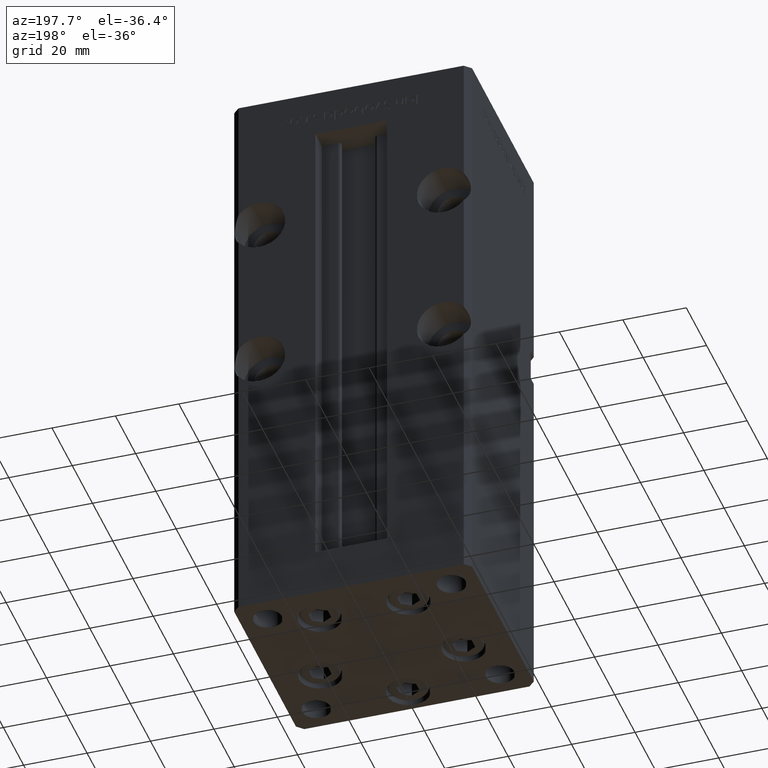
[diagram: clean part render]
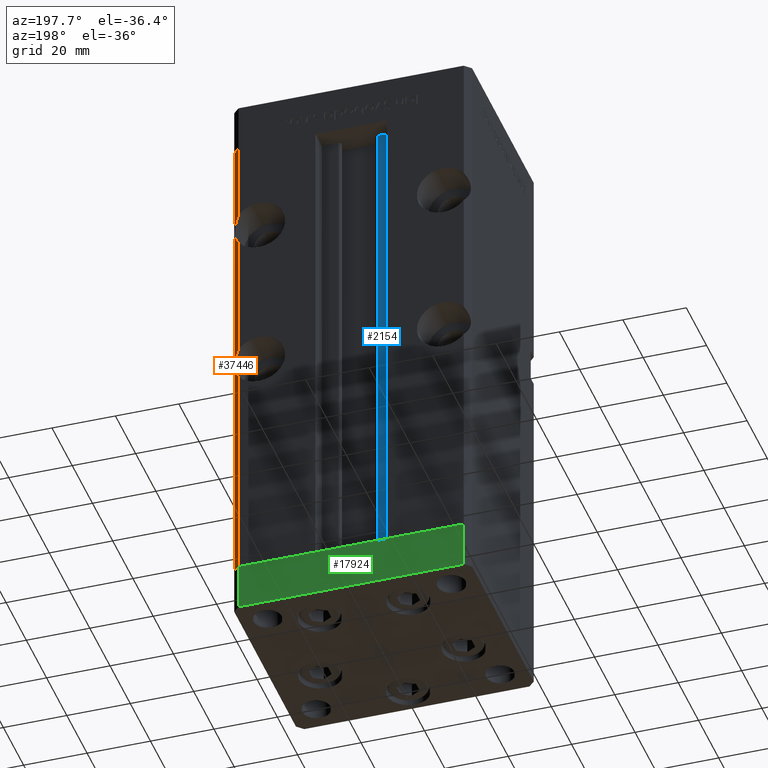
[diagram: same view with three faces highlighted in distinct colors, each labeled with its STEP entity id]
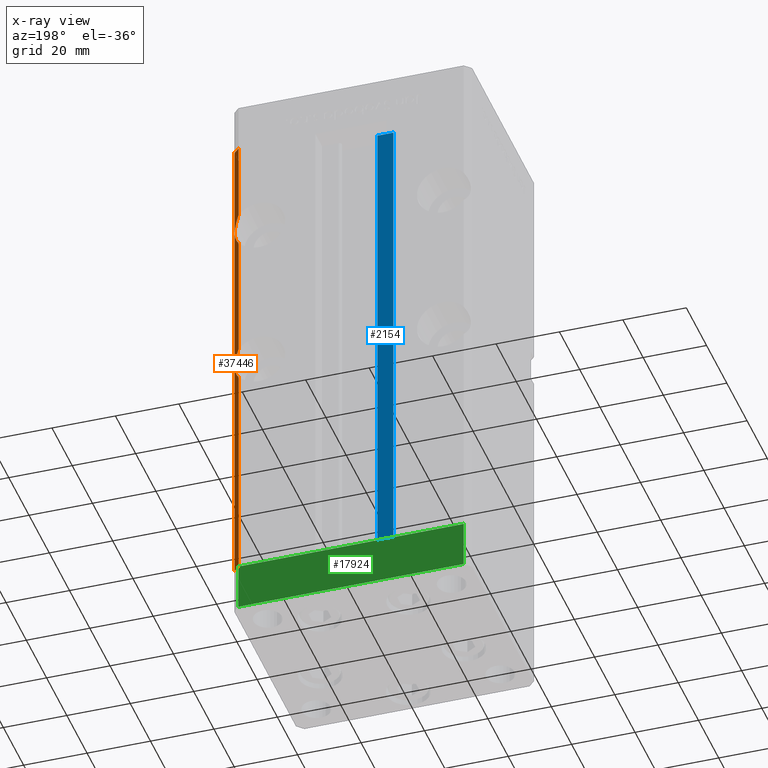
[diagram: x-ray of the same camera — body ghosted, the three highlighted faces saturated]
A machine part, auxiliary view with three faces highlighted in distinct colors.
The next image is the same camera in x-ray (body ghosted, the three faces saturated) — at least one of them is partly hidden behind the body in this view.
Their STEP definitions:

[orange] entity #37446 — the highlighted planar face has unit normal (0.7071, 0.7071, 0).
#1024 =( BOUNDED_CURVE ( )  B_SPLINE_CURVE ( 3, ( #35264, #32015, #2488, #19672 ),
 .UNSPECIFIED., .F., .F. ) 
 B_SPLINE_CURVE_WITH_KNOTS ( ( 4, 4 ),
 ( 2.478153219352369874, 3.805032087827216358 ),
 .UNSPECIFIED. ) 
 CURVE ( )  GEOMETRIC_REPRESENTATION_ITEM ( )  RATIONAL_B_SPLINE_CURVE ( ( 1.000000000000000000, 0.8585858585858592296, 0.8585858585858592296, 1.000000000000000000 ) ) 
 REPRESENTATION_ITEM ( '' )  );
#1656 = EDGE_CURVE ( 'NONE', #20543, #5739, #41974, .T. ) ;
#2025 = EDGE_CURVE ( 'NONE', #44956, #46390, #20901, .T. ) ;
#2107 = CARTESIAN_POINT ( 'NONE',  ( 37.50000000000001421, 30.50000000000001066, 156.0000000000000000 ) ) ;
#2488 = CARTESIAN_POINT ( 'NONE',  ( 37.92941176470587550, 30.07058823529415292, 74.02753162563014655 ) ) ;
#3663 = CARTESIAN_POINT ( 'NONE',  ( 35.50000000000000711, 32.50000000000000000, 81.08060035822539646 ) ) ;
#3798 = DIRECTION ( 'NONE',  ( -0.000000000000000000, -0.000000000000000000, -1.000000000000000000 ) ) ;
#4644 = VERTEX_POINT ( 'NONE', #22887 ) ;
#4741 = ORIENTED_EDGE ( 'NONE', *, *, #10741, .F. ) ;
#4958 = CARTESIAN_POINT ( 'NONE',  ( 35.50000000000000711, 32.50000000000000000, 156.0000000000000000 ) ) ;
#5012 = CARTESIAN_POINT ( 'NONE',  ( 35.50000000000000711, 32.50000000000000000, 156.0000000000000000 ) ) ;
#5118 = ORIENTED_EDGE ( 'NONE', *, *, #51036, .T. ) ;
#5739 = VERTEX_POINT ( 'NONE', #9605 ) ;
#7273 = CARTESIAN_POINT ( 'NONE',  ( 37.92941176470588971, 30.07058823529413516, 124.0275316256301323 ) ) ;
#9316 = VECTOR ( 'NONE', #27438, 1000.000000000000114 ) ;
#9605 = CARTESIAN_POINT ( 'NONE',  ( 37.50000000000001421, 30.50000000000001066, 0.000000000000000000 ) ) ;
#10651 = CARTESIAN_POINT ( 'NONE',  ( 35.50000000000000711, 32.50000000000000000, 156.0000000000000000 ) ) ;
#10741 = EDGE_CURVE ( 'NONE', #44719, #30002, #32273, .T. ) ;
#10961 = VECTOR ( 'NONE', #46480, 1000.000000000000000 ) ;
#11276 = VECTOR ( 'NONE', #3798, 1000.000000000000000 ) ;
#13287 = PLANE ( 'NONE',  #41937 ) ;
#14814 = CARTESIAN_POINT ( 'NONE',  ( 37.92941176470588971, 30.07058823529413516, 127.9724683743698534 ) ) ;
#14975 = ORIENTED_EDGE ( 'NONE', *, *, #19536, .F. ) ;
#16305 = ORIENTED_EDGE ( 'NONE', *, *, #1656, .F. ) ;
#17793 = CARTESIAN_POINT ( 'NONE',  ( 35.50000000000000711, 32.50000000000000000, 156.0000000000000000 ) ) ;
#19536 = EDGE_CURVE ( 'NONE', #46390, #36000, #1024, .T. ) ;
#19672 = CARTESIAN_POINT ( 'NONE',  ( 35.50000000000000711, 32.50000000000000000, 70.91939964177463196 ) ) ;
#20543 = VERTEX_POINT ( 'NONE', #45888 ) ;
#20901 = LINE ( 'NONE', #5012, #39363 ) ;
#21510 = CARTESIAN_POINT ( 'NONE',  ( 35.50000000000000711, 32.50000000000000000, 131.0806003582254107 ) ) ;
#22887 = CARTESIAN_POINT ( 'NONE',  ( 37.50000000000001421, 30.50000000000001066, 156.0000000000000000 ) ) ;
#24153 = CARTESIAN_POINT ( 'NONE',  ( 35.50000000000000711, 32.50000000000000000, 70.91939964177463196 ) ) ;
#25808 = CARTESIAN_POINT ( 'NONE',  ( 35.50000000000000711, 32.50000000000000000, 120.9193996417745893 ) ) ;
#26215 = ORIENTED_EDGE ( 'NONE', *, *, #38067, .F. ) ;
#27166 = CARTESIAN_POINT ( 'NONE',  ( 35.50000000000000711, 32.50000000000000000, 0.000000000000000000 ) ) ;
#27438 = DIRECTION ( 'NONE',  ( 0.7071067811865506814, -0.7071067811865443531, 0.000000000000000000 ) ) ;
#28820 = DIRECTION ( 'NONE',  ( 0.7071067811865506814, -0.7071067811865443531, 0.000000000000000000 ) ) ;
#29044 = ORIENTED_EDGE ( 'NONE', *, *, #30610, .T. ) ;
#30002 = VERTEX_POINT ( 'NONE', #21510 ) ;
#30068 = LINE ( 'NONE', #2107, #10961 ) ;
#30610 = EDGE_CURVE ( 'NONE', #4644, #5739, #30068, .T. ) ;
#31085 = DIRECTION ( 'NONE',  ( -0.000000000000000000, -0.000000000000000000, -1.000000000000000000 ) ) ;
#32015 = CARTESIAN_POINT ( 'NONE',  ( 37.92941176470587550, 30.07058823529416358, 77.97246837436986766 ) ) ;
#32273 = LINE ( 'NONE', #44674, #11276 ) ;
#32849 = CARTESIAN_POINT ( 'NONE',  ( 35.50000000000000711, 32.50000000000000000, 156.0000000000000000 ) ) ;
#33235 = ORIENTED_EDGE ( 'NONE', *, *, #45674, .F. ) ;
#33947 = EDGE_LOOP ( 'NONE', ( #14975, #50245, #33235, #4741, #5118, #29044, #16305, #26215 ) ) ;
#35264 = CARTESIAN_POINT ( 'NONE',  ( 35.50000000000000711, 32.50000000000000000, 81.08060035822539646 ) ) ;
#36000 = VERTEX_POINT ( 'NONE', #24153 ) ;
#37014 = DIRECTION ( 'NONE',  ( -0.000000000000000000, -0.000000000000000000, -1.000000000000000000 ) ) ;
#37446 = ADVANCED_FACE ( 'NONE', ( #42065 ), #13287, .T. ) ;
#37759 = DIRECTION ( 'NONE',  ( 0.7071067811865443531, 0.7071067811865506814, -0.000000000000000000 ) ) ;
#38067 = EDGE_CURVE ( 'NONE', #36000, #20543, #38882, .T. ) ;
#38882 = LINE ( 'NONE', #10651, #46281 ) ;
#39363 = VECTOR ( 'NONE', #37014, 1000.000000000000000 ) ;
#40992 = VECTOR ( 'NONE', #28820, 1000.000000000000114 ) ;
#41937 = AXIS2_PLACEMENT_3D ( 'NONE', #4958, #37759, #42594 ) ;
#41974 = LINE ( 'NONE', #27166, #9316 ) ;
#42065 = FACE_OUTER_BOUND ( 'NONE', #33947, .T. ) ;
#42594 = DIRECTION ( 'NONE',  ( -0.7071067811865506814, 0.7071067811865443531, 0.000000000000000000 ) ) ;
#44674 = CARTESIAN_POINT ( 'NONE',  ( 35.50000000000000711, 32.50000000000000000, 156.0000000000000000 ) ) ;
#44698 = LINE ( 'NONE', #32849, #40992 ) ;
#44719 = VERTEX_POINT ( 'NONE', #17793 ) ;
#44956 = VERTEX_POINT ( 'NONE', #25808 ) ;
#45674 = EDGE_CURVE ( 'NONE', #30002, #44956, #48739, .T. ) ;
#45888 = CARTESIAN_POINT ( 'NONE',  ( 35.50000000000000711, 32.50000000000000000, 0.000000000000000000 ) ) ;
#46281 = VECTOR ( 'NONE', #31085, 1000.000000000000000 ) ;
#46390 = VERTEX_POINT ( 'NONE', #3663 ) ;
#46480 = DIRECTION ( 'NONE',  ( -0.000000000000000000, -0.000000000000000000, -1.000000000000000000 ) ) ;
#47901 = CARTESIAN_POINT ( 'NONE',  ( 35.50000000000000711, 32.50000000000000000, 120.9193996417745893 ) ) ;
#48166 = CARTESIAN_POINT ( 'NONE',  ( 35.50000000000000711, 32.50000000000000000, 131.0806003582254107 ) ) ;
#48739 =( BOUNDED_CURVE ( )  B_SPLINE_CURVE ( 3, ( #48166, #14814, #7273, #47901 ),
 .UNSPECIFIED., .F., .F. ) 
 B_SPLINE_CURVE_WITH_KNOTS ( ( 4, 4 ),
 ( 2.478153219352367209, 3.805032087827219023 ),
 .UNSPECIFIED. ) 
 CURVE ( )  GEOMETRIC_REPRESENTATION_ITEM ( )  RATIONAL_B_SPLINE_CURVE ( ( 1.000000000000000000, 0.8585858585858581193, 0.8585858585858581193, 1.000000000000000000 ) ) 
 REPRESENTATION_ITEM ( '' )  );
#50245 = ORIENTED_EDGE ( 'NONE', *, *, #2025, .F. ) ;
#51036 = EDGE_CURVE ( 'NONE', #44719, #4644, #44698, .T. ) ;

[blue] entity #2154 — the highlighted planar face has unit normal (0, -1, 0).
#992 = ORIENTED_EDGE ( 'NONE', *, *, #5457, .F. ) ;
#2154 = ADVANCED_FACE ( 'NONE', ( #24060 ), #3625, .F. ) ;
#2629 = EDGE_LOOP ( 'NONE', ( #992, #48252, #33748, #14465 ) ) ;
#3444 = LINE ( 'NONE', #7194, #8818 ) ;
#3625 = PLANE ( 'NONE',  #46254 ) ;
#4351 = VERTEX_POINT ( 'NONE', #15664 ) ;
#5457 = EDGE_CURVE ( 'NONE', #33058, #39106, #42215, .T. ) ;
#5841 = VECTOR ( 'NONE', #50242, 1000.000000000000000 ) ;
#6950 = CARTESIAN_POINT ( 'NONE',  ( -6.183333333333980164, 26.00000000000000000, 156.0000000000000000 ) ) ;
#7194 = CARTESIAN_POINT ( 'NONE',  ( -6.183333333333980164, 26.00000000000000000, 0.000000000000000000 ) ) ;
#8818 = VECTOR ( 'NONE', #36222, 1000.000000000000000 ) ;
#9426 = VECTOR ( 'NONE', #47316, 1000.000000000000000 ) ;
#11126 = LINE ( 'NONE', #48752, #13157 ) ;
#13157 = VECTOR ( 'NONE', #39884, 1000.000000000000000 ) ;
#13464 = EDGE_CURVE ( 'NONE', #23496, #33058, #3444, .T. ) ;
#14465 = ORIENTED_EDGE ( 'NONE', *, *, #47368, .F. ) ;
#14487 = CARTESIAN_POINT ( 'NONE',  ( -6.183333333333980164, 26.00000000000000000, 0.000000000000000000 ) ) ;
#15664 = CARTESIAN_POINT ( 'NONE',  ( -11.24999999999998046, 26.00000000000000000, 156.0000000000000000 ) ) ;
#22004 = CARTESIAN_POINT ( 'NONE',  ( -11.24999999999998046, 26.00000000000000000, 0.000000000000000000 ) ) ;
#23496 = VERTEX_POINT ( 'NONE', #28005 ) ;
#24060 = FACE_OUTER_BOUND ( 'NONE', #2629, .T. ) ;
#28005 = CARTESIAN_POINT ( 'NONE',  ( -11.24999999999998046, 26.00000000000000000, 0.000000000000000000 ) ) ;
#32363 = DIRECTION ( 'NONE',  ( 0.000000000000000000, 0.000000000000000000, -1.000000000000000000 ) ) ;
#33058 = VERTEX_POINT ( 'NONE', #45847 ) ;
#33748 = ORIENTED_EDGE ( 'NONE', *, *, #52530, .T. ) ;
#36222 = DIRECTION ( 'NONE',  ( 1.000000000000000000, -0.000000000000000000, -0.000000000000000000 ) ) ;
#36402 = CARTESIAN_POINT ( 'NONE',  ( -6.183333333333980164, 26.00000000000000000, 0.000000000000000000 ) ) ;
#37858 = LINE ( 'NONE', #22004, #5841 ) ;
#39106 = VERTEX_POINT ( 'NONE', #6950 ) ;
#39657 = DIRECTION ( 'NONE',  ( 0.000000000000000000, -1.000000000000000000, -0.000000000000000000 ) ) ;
#39884 = DIRECTION ( 'NONE',  ( -1.000000000000000000, 0.000000000000000000, 0.000000000000000000 ) ) ;
#42215 = LINE ( 'NONE', #14487, #9426 ) ;
#45847 = CARTESIAN_POINT ( 'NONE',  ( -6.183333333333980164, 26.00000000000000000, 0.000000000000000000 ) ) ;
#46254 = AXIS2_PLACEMENT_3D ( 'NONE', #36402, #39657, #32363 ) ;
#47316 = DIRECTION ( 'NONE',  ( -0.000000000000000000, -0.000000000000000000, 1.000000000000000000 ) ) ;
#47368 = EDGE_CURVE ( 'NONE', #39106, #4351, #11126, .T. ) ;
#48252 = ORIENTED_EDGE ( 'NONE', *, *, #13464, .F. ) ;
#48752 = CARTESIAN_POINT ( 'NONE',  ( 0.000000000000000000, 26.00000000000000000, 156.0000000000000000 ) ) ;
#50242 = DIRECTION ( 'NONE',  ( -0.000000000000000000, -0.000000000000000000, 1.000000000000000000 ) ) ;
#52530 = EDGE_CURVE ( 'NONE', #23496, #4351, #37858, .T. ) ;

[green] entity #17924 — the highlighted planar face has unit normal (-0, 1, 0).
#394 = LINE ( 'NONE', #20018, #15252 ) ;
#5390 = ORIENTED_EDGE ( 'NONE', *, *, #23771, .T. ) ;
#7918 = VECTOR ( 'NONE', #22286, 1000.000000000000000 ) ;
#8872 = PLANE ( 'NONE',  #40741 ) ;
#9133 = FACE_OUTER_BOUND ( 'NONE', #46016, .T. ) ;
#11673 = DIRECTION ( 'NONE',  ( -1.000000000000000000, -1.954618001100629052E-16, 0.000000000000000000 ) ) ;
#11937 = EDGE_CURVE ( 'NONE', #12661, #26611, #13925, .T. ) ;
#12661 = VERTEX_POINT ( 'NONE', #14194 ) ;
#13925 = LINE ( 'NONE', #51309, #7918 ) ;
#14194 = CARTESIAN_POINT ( 'NONE',  ( -35.50000000000002842, 32.49999999999999289, -15.00000000000000000 ) ) ;
#15252 = VECTOR ( 'NONE', #11673, 1000.000000000000000 ) ;
#16945 = DIRECTION ( 'NONE',  ( -1.000000000000000000, -1.954618001100629052E-16, 0.000000000000000000 ) ) ;
#17924 = ADVANCED_FACE ( 'NONE', ( #9133 ), #8872, .T. ) ;
#20018 = CARTESIAN_POINT ( 'NONE',  ( 35.49999999999992184, 32.50000000000000711, 0.000000000000000000 ) ) ;
#20025 = DIRECTION ( 'NONE',  ( 0.000000000000000000, 0.000000000000000000, 1.000000000000000000 ) ) ;
#22065 = CARTESIAN_POINT ( 'NONE',  ( 35.49999999999992184, 32.50000000000000711, -15.00000000000000000 ) ) ;
#22286 = DIRECTION ( 'NONE',  ( 0.000000000000000000, 0.000000000000000000, 1.000000000000000000 ) ) ;
#23771 = EDGE_CURVE ( 'NONE', #50622, #12661, #30910, .T. ) ;
#25133 = LINE ( 'NONE', #40447, #35898 ) ;
#26611 = VERTEX_POINT ( 'NONE', #29195 ) ;
#29041 = CARTESIAN_POINT ( 'NONE',  ( 35.49999999999992184, 32.50000000000000711, -15.00000000000000000 ) ) ;
#29195 = CARTESIAN_POINT ( 'NONE',  ( -35.50000000000002842, 32.49999999999999289, 0.000000000000000000 ) ) ;
#29577 = DIRECTION ( 'NONE',  ( -1.954618001100629052E-16, 1.000000000000000000, 0.000000000000000000 ) ) ;
#30910 = LINE ( 'NONE', #22065, #40817 ) ;
#31188 = EDGE_CURVE ( 'NONE', #36131, #26611, #394, .T. ) ;
#31494 = ORIENTED_EDGE ( 'NONE', *, *, #11937, .T. ) ;
#32151 = EDGE_CURVE ( 'NONE', #50622, #36131, #25133, .T. ) ;
#34137 = DIRECTION ( 'NONE',  ( -1.000000000000000000, -1.954618001100629052E-16, 0.000000000000000000 ) ) ;
#34856 = CARTESIAN_POINT ( 'NONE',  ( 35.49999999999992184, 32.50000000000000711, 0.000000000000000000 ) ) ;
#35898 = VECTOR ( 'NONE', #20025, 1000.000000000000000 ) ;
#36131 = VERTEX_POINT ( 'NONE', #34856 ) ;
#36785 = ORIENTED_EDGE ( 'NONE', *, *, #31188, .F. ) ;
#40447 = CARTESIAN_POINT ( 'NONE',  ( 35.49999999999992184, 32.50000000000000711, -15.00000000000000000 ) ) ;
#40741 = AXIS2_PLACEMENT_3D ( 'NONE', #29041, #29577, #16945 ) ;
#40817 = VECTOR ( 'NONE', #34137, 1000.000000000000000 ) ;
#42593 = ORIENTED_EDGE ( 'NONE', *, *, #32151, .F. ) ;
#46016 = EDGE_LOOP ( 'NONE', ( #36785, #42593, #5390, #31494 ) ) ;
#48267 = CARTESIAN_POINT ( 'NONE',  ( 35.49999999999992184, 32.50000000000000711, -15.00000000000000000 ) ) ;
#50622 = VERTEX_POINT ( 'NONE', #48267 ) ;
#51309 = CARTESIAN_POINT ( 'NONE',  ( -35.50000000000002842, 32.49999999999999289, -15.00000000000000000 ) ) ;